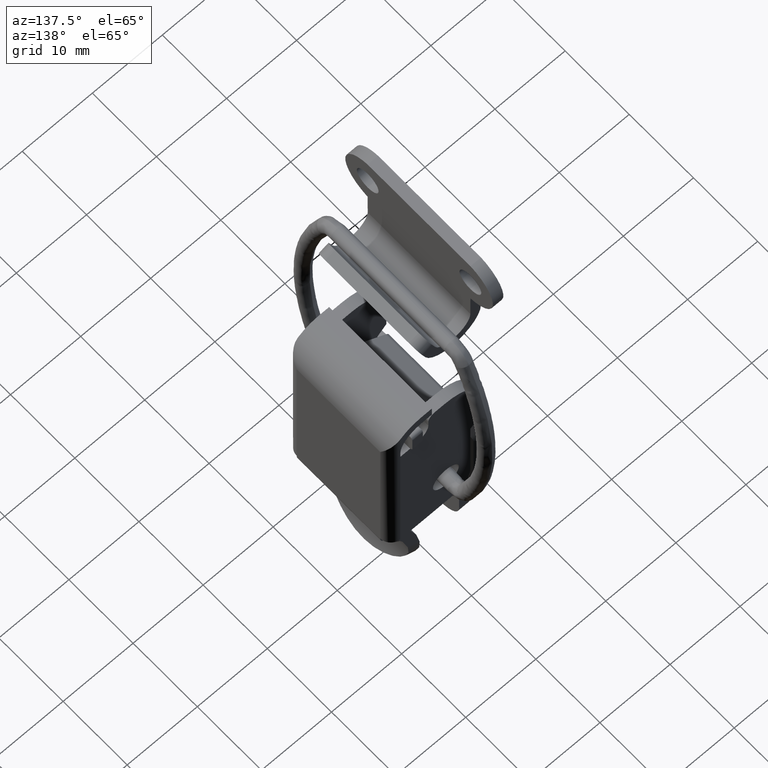
[diagram: clean part render]
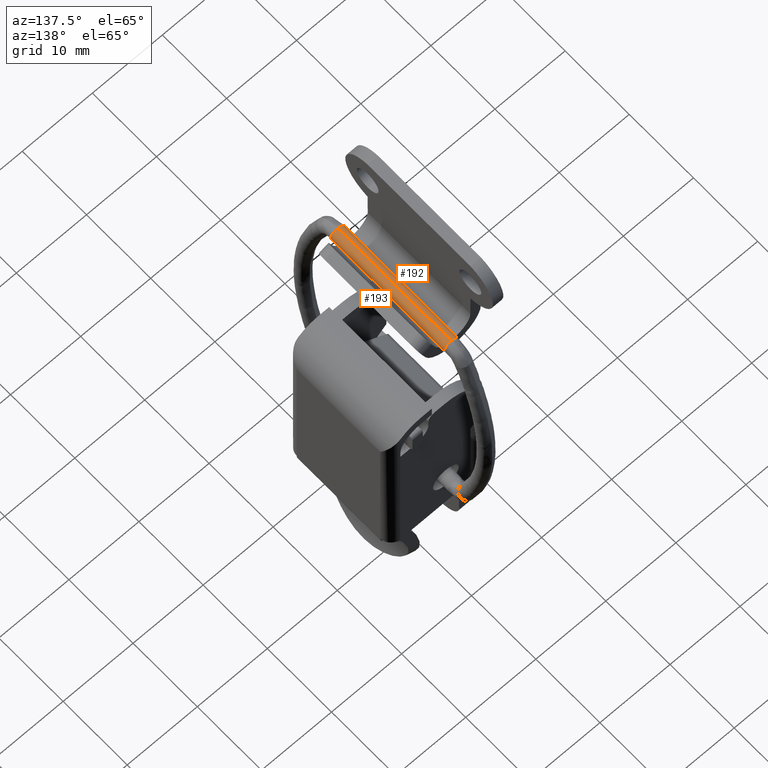
[diagram: same view with one multi-face feature highlighted, each face labeled with its STEP entity id]
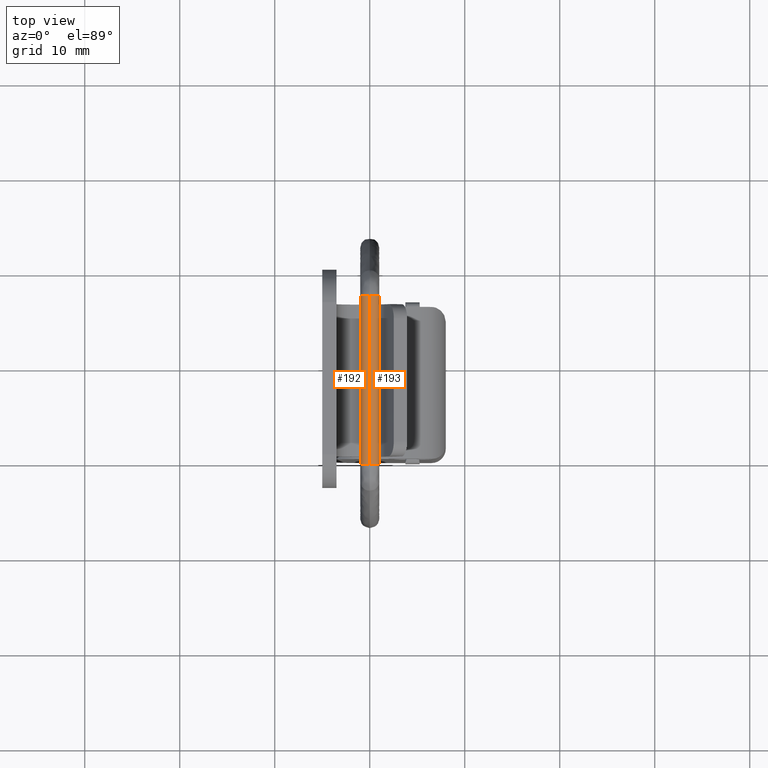
[diagram: same view with one multi-face feature highlighted, each face labeled with its STEP entity id]
A machine part, auxiliary view. The highlighted faces form ONE feature: a constant-radius fillet chain: 2 tangent blend faces with common blend radius 1 mm. The faces share edges in the B-rep.
A second angle (top view) of the same feature is appended — it is thin or edge-on in the first view.
Their STEP definitions:
[1] entity #193 (Cylinder):
#193=ADVANCED_FACE('',(#385),#384,.T.);
#384=CYLINDRICAL_SURFACE('',#1686,1.00000000000E+00);
#385=FACE_OUTER_BOUND('',#1687,.T.);
#1683=CARTESIAN_POINT('',(8.86723816095E+00,1.00000000000E+00,1.76583051149E+01));
#1684=DIRECTION('',(1.00000000000E+00,-0.00000000000E+00,-0.00000000000E+00));
#1685=DIRECTION('',(-0.00000000000E+00,-0.00000000000E+00,-1.00000000000E+00));
#1686=AXIS2_PLACEMENT_3D('',#1683,#1684,#1685);
#1687=EDGE_LOOP('',(#2458,#2459,#2460,#2461));
#2458=ORIENTED_EDGE('',*,*,#3138,.T.);
#2459=ORIENTED_EDGE('',*,*,#3135,.T.);
#2460=ORIENTED_EDGE('',*,*,#3139,.F.);
#2461=ORIENTED_EDGE('',*,*,#3137,.F.);
#3135=EDGE_CURVE('',#3567,#3559,#3568,.T.);
#3137=EDGE_CURVE('',#3574,#3560,#3581,.T.);
#3138=EDGE_CURVE('',#3574,#3567,#3587,.T.);
#3139=EDGE_CURVE('',#3560,#3559,#3593,.T.);
#3559=VERTEX_POINT('',#5824);
#3560=VERTEX_POINT('',#5825);
#3567=VERTEX_POINT('',#5830);
#3568=(BOUNDED_CURVE() B_SPLINE_CURVE(1,(#5831,#5832),.UNSPECIFIED.,.F.,.F.) B_SPLINE_CURVE_WITH_KNOTS((2,2),(8.33333328360E-02,9.16666665505E-01),.UNSPECIFIED.) CURVE() GEOMETRIC_REPRESENTATION_ITEM() RATIONAL_B_SPLINE_CURVE((1.00000000000E+00,1.00000000000E+00)) REPRESENTATION_ITEM('') );
#3574=VERTEX_POINT('',#5833);
#3581=(BOUNDED_CURVE() B_SPLINE_CURVE(1,(#5838,#5839),.UNSPECIFIED.,.F.,.F.) B_SPLINE_CURVE_WITH_KNOTS((2,2),(8.33333333333E-02,9.16666666667E-01),.UNSPECIFIED.) CURVE() GEOMETRIC_REPRESENTATION_ITEM() RATIONAL_B_SPLINE_CURVE((7.50000000000E-01,7.50000000000E-01)) REPRESENTATION_ITEM('') );
#3587=CIRCLE('',#5843,1.00000000000E+00);
#3593=CIRCLE('',#5847,1.00000000000E+00);
#5824=CARTESIAN_POINT('',(8.86723816095E+00,1.00000000000E+00,1.66583051149E+01));
#5825=CARTESIAN_POINT('',(8.86723816095E+00,1.00000000000E+00,1.86583051149E+01));
#5830=CARTESIAN_POINT('',(-8.86723816095E+00,1.00000000000E+00,1.66583051149E+01));
#5831=CARTESIAN_POINT('',(-8.86723817154E+00,1.00000000000E+00,1.66583051149E+01));
#5832=CARTESIAN_POINT('',(8.86723813622E+00,1.00000000000E+00,1.66583051149E+01));
#5833=CARTESIAN_POINT('',(-8.86723816095E+00,1.00000000000E+00,1.86583051149E+01));
#5838=CARTESIAN_POINT('',(-8.86723816095E+00,1.00000000000E+00,1.86583051149E+01));
#5839=CARTESIAN_POINT('',(8.86723816095E+00,1.00000000000E+00,1.86583051149E+01));
#5840=CARTESIAN_POINT('',(-8.86723816095E+00,1.00000000000E+00,1.76583051149E+01));
#5841=DIRECTION('',(1.00000000000E+00,0.00000000000E+00,0.00000000000E+00));
#5842=DIRECTION('',(0.00000000000E+00,-1.22460635382E-16,-1.00000000000E+00));
#5843=AXIS2_PLACEMENT_3D('',#5840,#5841,#5842);
#5844=CARTESIAN_POINT('',(8.86723816095E+00,1.00000000000E+00,1.76583051149E+01));
#5845=DIRECTION('',(1.00000000000E+00,0.00000000000E+00,0.00000000000E+00));
#5846=DIRECTION('',(0.00000000000E+00,-1.22460635382E-16,-1.00000000000E+00));
#5847=AXIS2_PLACEMENT_3D('',#5844,#5845,#5846);
[2] entity #192 (Cylinder):
#192=ADVANCED_FACE('',(#375),#374,.T.);
#374=CYLINDRICAL_SURFACE('',#1681,1.00000000000E+00);
#375=FACE_OUTER_BOUND('',#1682,.T.);
#1678=CARTESIAN_POINT('',(8.86723816095E+00,1.00000000000E+00,1.76583051149E+01));
#1679=DIRECTION('',(1.00000000000E+00,-0.00000000000E+00,-0.00000000000E+00));
#1680=DIRECTION('',(-0.00000000000E+00,-0.00000000000E+00,-1.00000000000E+00));
#1681=AXIS2_PLACEMENT_3D('',#1678,#1679,#1680);
#1682=EDGE_LOOP('',(#2454,#2455,#2456,#2457));
#2454=ORIENTED_EDGE('',*,*,#3134,.F.);
#2455=ORIENTED_EDGE('',*,*,#3135,.F.);
#2456=ORIENTED_EDGE('',*,*,#3136,.T.);
#2457=ORIENTED_EDGE('',*,*,#3137,.T.);
#3134=EDGE_CURVE('',#3559,#3560,#3561,.T.);
#3135=EDGE_CURVE('',#3567,#3559,#3568,.T.);
#3136=EDGE_CURVE('',#3567,#3574,#3575,.T.);
#3137=EDGE_CURVE('',#3574,#3560,#3581,.T.);
#3559=VERTEX_POINT('',#5824);
#3560=VERTEX_POINT('',#5825);
#3561=CIRCLE('',#5829,1.00000000000E+00);
#3567=VERTEX_POINT('',#5830);
#3568=(BOUNDED_CURVE() B_SPLINE_CURVE(1,(#5831,#5832),.UNSPECIFIED.,.F.,.F.) B_SPLINE_CURVE_WITH_KNOTS((2,2),(8.33333328360E-02,9.16666665505E-01),.UNSPECIFIED.) CURVE() GEOMETRIC_REPRESENTATION_ITEM() RATIONAL_B_SPLINE_CURVE((1.00000000000E+00,1.00000000000E+00)) REPRESENTATION_ITEM('') );
#3574=VERTEX_POINT('',#5833);
#3575=CIRCLE('',#5837,1.00000000000E+00);
#3581=(BOUNDED_CURVE() B_SPLINE_CURVE(1,(#5838,#5839),.UNSPECIFIED.,.F.,.F.) B_SPLINE_CURVE_WITH_KNOTS((2,2),(8.33333333333E-02,9.16666666667E-01),.UNSPECIFIED.) CURVE() GEOMETRIC_REPRESENTATION_ITEM() RATIONAL_B_SPLINE_CURVE((7.50000000000E-01,7.50000000000E-01)) REPRESENTATION_ITEM('') );
#5824=CARTESIAN_POINT('',(8.86723816095E+00,1.00000000000E+00,1.66583051149E+01));
#5825=CARTESIAN_POINT('',(8.86723816095E+00,1.00000000000E+00,1.86583051149E+01));
#5826=CARTESIAN_POINT('',(8.86723816095E+00,1.00000000000E+00,1.76583051149E+01));
#5827=DIRECTION('',(1.00000000000E+00,0.00000000000E+00,0.00000000000E+00));
#5828=DIRECTION('',(0.00000000000E+00,-1.22460635382E-16,-1.00000000000E+00));
#5829=AXIS2_PLACEMENT_3D('',#5826,#5827,#5828);
#5830=CARTESIAN_POINT('',(-8.86723816095E+00,1.00000000000E+00,1.66583051149E+01));
#5831=CARTESIAN_POINT('',(-8.86723817154E+00,1.00000000000E+00,1.66583051149E+01));
#5832=CARTESIAN_POINT('',(8.86723813622E+00,1.00000000000E+00,1.66583051149E+01));
#5833=CARTESIAN_POINT('',(-8.86723816095E+00,1.00000000000E+00,1.86583051149E+01));
#5834=CARTESIAN_POINT('',(-8.86723816095E+00,1.00000000000E+00,1.76583051149E+01));
#5835=DIRECTION('',(1.00000000000E+00,0.00000000000E+00,0.00000000000E+00));
#5836=DIRECTION('',(0.00000000000E+00,-1.22460635382E-16,-1.00000000000E+00));
#5837=AXIS2_PLACEMENT_3D('',#5834,#5835,#5836);
#5838=CARTESIAN_POINT('',(-8.86723816095E+00,1.00000000000E+00,1.86583051149E+01));
#5839=CARTESIAN_POINT('',(8.86723816095E+00,1.00000000000E+00,1.86583051149E+01));